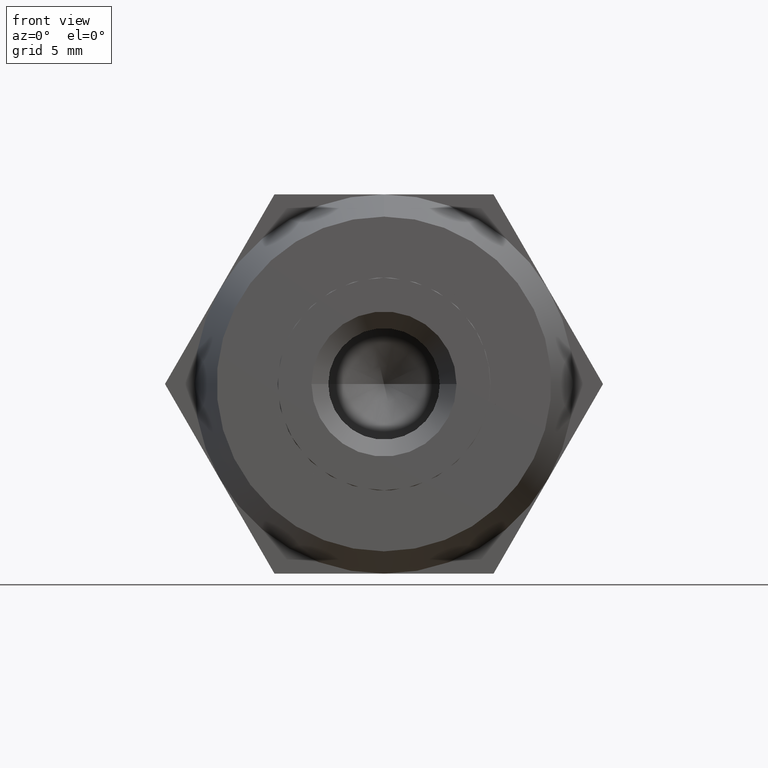
[diagram: clean part render]
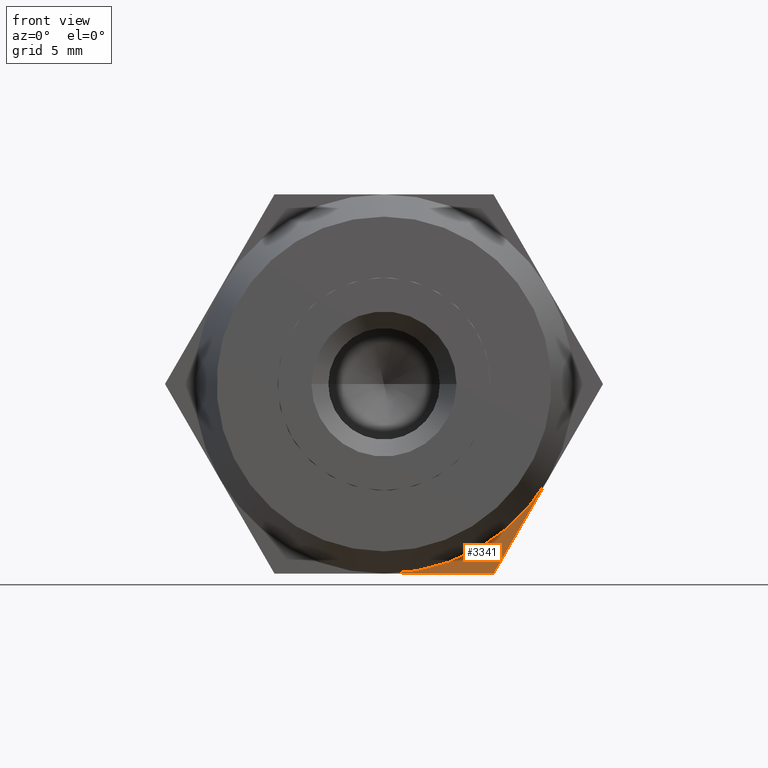
[diagram: same view with one face highlighted and labeled with its STEP entity id]
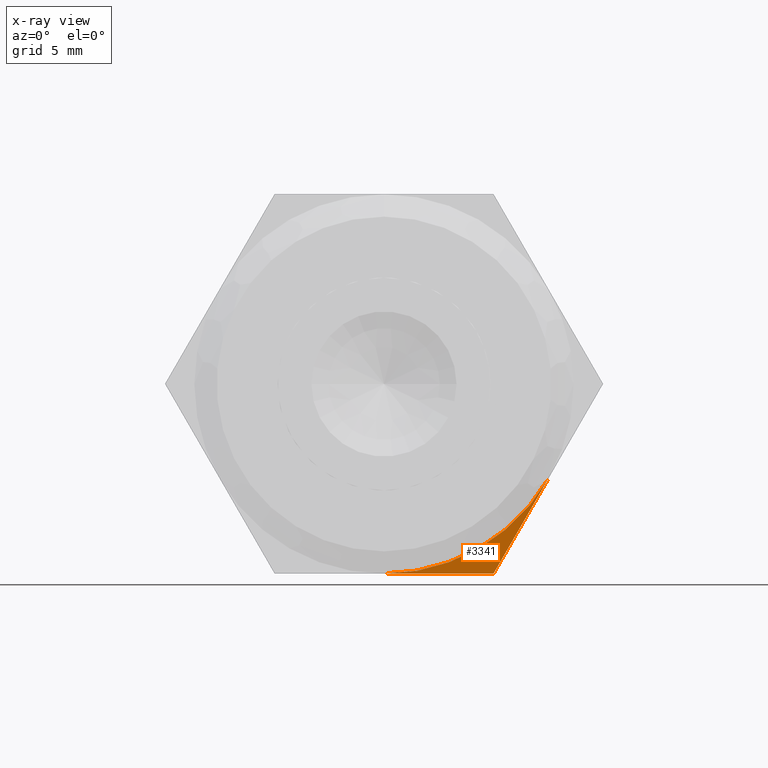
[diagram: x-ray of the same camera — body ghosted, the highlighted face saturated]
A machine part, front view. The second image highlights one B-rep face of the part: STEP entity #3341.
The next image is the same camera in x-ray: the body ghosted, the highlighted face saturated — about 0% of this face is hidden behind the body in this view.
In plain terms, the highlighted planar face has unit normal (0, 1, 0).
Its self-contained STEP definition (entity closure, byte-faithful):
#56 = VECTOR ( 'NONE', #2371, 1000.000000000000000 ) ;
#233 = ORIENTED_EDGE ( 'NONE', *, *, #3103, .T. ) ;
#684 = EDGE_LOOP ( 'NONE', ( #1450, #233, #2270 ) ) ;
#729 = VERTEX_POINT ( 'NONE', #1412 ) ;
#768 = DIRECTION ( 'NONE',  ( 0.0000000000000000000, 0.0000000000000000000, 1.000000000000000000 ) ) ;
#837 = CARTESIAN_POINT ( 'NONE',  ( 7.361215932167730200, -2.500000000000000000, -4.250000000000000000 ) ) ;
#890 = EDGE_CURVE ( 'NONE', #2629, #729, #3001, .T. ) ;
#1129 = AXIS2_PLACEMENT_3D ( 'NONE', #2547, #3432, #768 ) ;
#1208 = CARTESIAN_POINT ( 'NONE',  ( 0.0000000000000000000, -2.500000000000000000, 0.0000000000000000000 ) ) ;
#1317 = DIRECTION ( 'NONE',  ( -1.000000000000000000, 0.0000000000000000000, 0.0000000000000000000 ) ) ;
#1412 = CARTESIAN_POINT ( 'NONE',  ( 0.0000000000000000000, -2.500000000000000000, -8.500000000000000000 ) ) ;
#1450 = ORIENTED_EDGE ( 'NONE', *, *, #2442, .F. ) ;
#1536 = FACE_OUTER_BOUND ( 'NONE', #684, .T. ) ;
#1594 = VECTOR ( 'NONE', #1317, 1000.000000000000000 ) ;
#1720 = AXIS2_PLACEMENT_3D ( 'NONE', #1208, #2980, #2998 ) ;
#2270 = ORIENTED_EDGE ( 'NONE', *, *, #890, .F. ) ;
#2371 = DIRECTION ( 'NONE',  ( -0.4999999999999998900, 0.0000000000000000000, -0.8660254037844387100 ) ) ;
#2384 = PLANE ( 'NONE',  #1720 ) ;
#2442 = EDGE_CURVE ( 'NONE', #2733, #2629, #3086, .T. ) ;
#2547 = CARTESIAN_POINT ( 'NONE',  ( 0.0000000000000000000, -2.500000000000000000, 0.0000000000000000000 ) ) ;
#2629 = VERTEX_POINT ( 'NONE', #3729 ) ;
#2668 = CARTESIAN_POINT ( 'NONE',  ( 9.814954576223639600, -2.500000000000000000, -1.574757103346314900E-015 ) ) ;
#2733 = VERTEX_POINT ( 'NONE', #837 ) ;
#2980 = DIRECTION ( 'NONE',  ( 0.0000000000000000000, 1.000000000000000000, 0.0000000000000000000 ) ) ;
#2998 = DIRECTION ( 'NONE',  ( 0.0000000000000000000, 0.0000000000000000000, 1.000000000000000000 ) ) ;
#3001 = LINE ( 'NONE', #3375, #1594 ) ;
#3086 = LINE ( 'NONE', #2668, #56 ) ;
#3103 = EDGE_CURVE ( 'NONE', #2733, #729, #3787, .T. ) ;
#3341 = ADVANCED_FACE ( 'NONE', ( #1536 ), #2384, .F. ) ;
#3375 = CARTESIAN_POINT ( 'NONE',  ( 4.907477288111810100, -2.500000000000000000, -8.500000000000000000 ) ) ;
#3432 = DIRECTION ( 'NONE',  ( 0.0000000000000000000, 1.000000000000000000, 0.0000000000000000000 ) ) ;
#3729 = CARTESIAN_POINT ( 'NONE',  ( 4.907477288111810100, -2.500000000000000000, -8.500000000000000000 ) ) ;
#3787 = CIRCLE ( 'NONE', #1129, 8.500000000000000000 ) ;